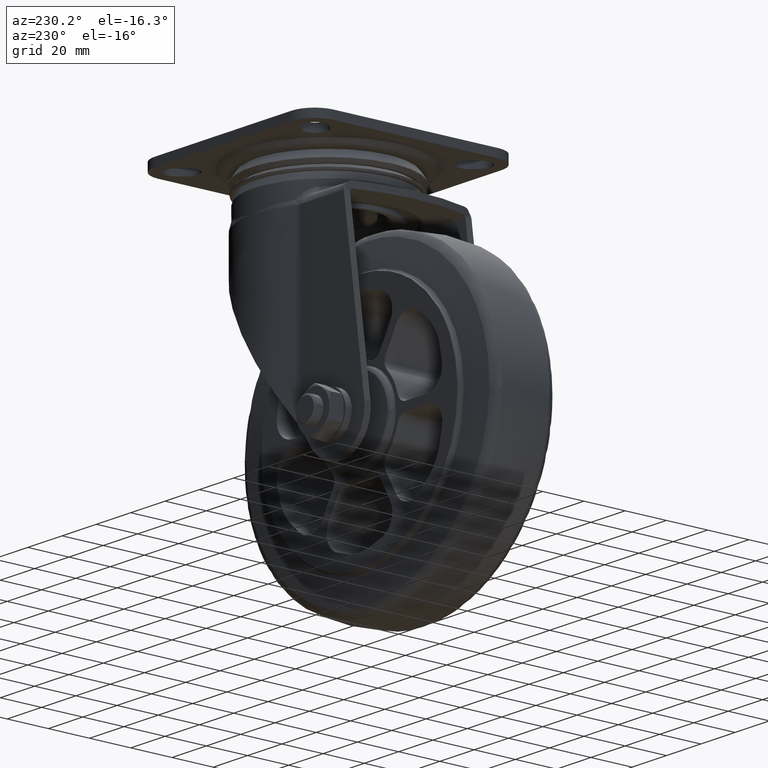
[diagram: clean part render]
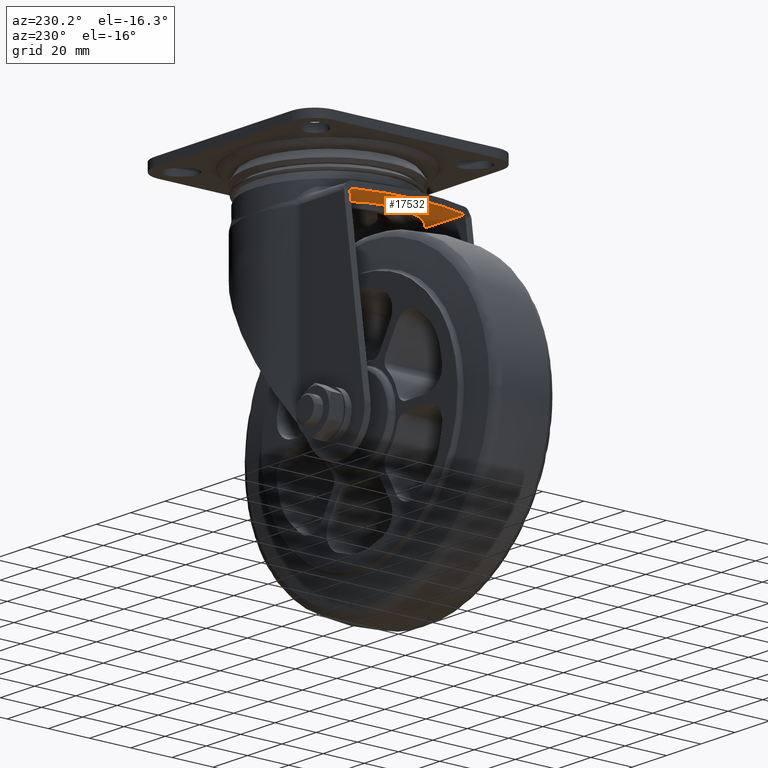
[diagram: same view with one face highlighted and labeled with its STEP entity id]
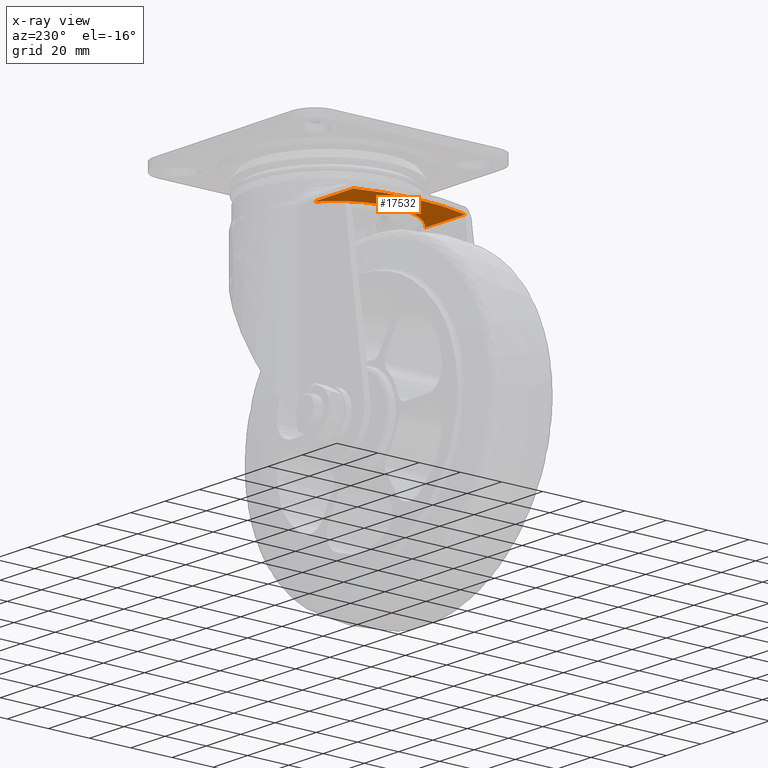
[diagram: x-ray of the same camera — body ghosted, the highlighted face saturated]
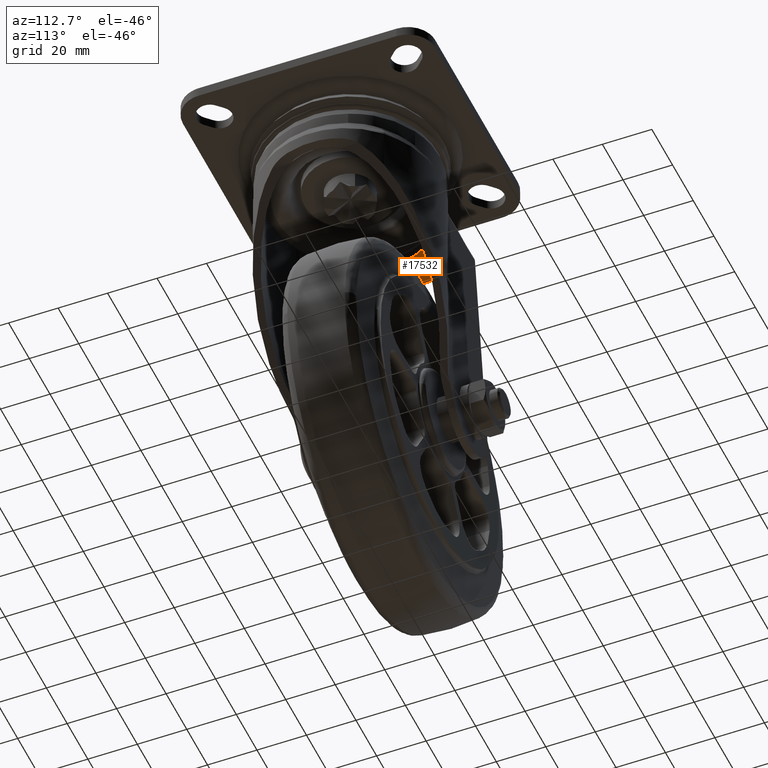
[diagram: same view with one face highlighted and labeled with its STEP entity id]
A machine part, auxiliary view. The second image highlights one B-rep face of the part: STEP entity #17532.
The next image is the same camera in x-ray: the body ghosted, the highlighted face saturated — about 0% of this face is hidden behind the body in this view.
A second angle (auxiliary view) of the same face is appended — the face is thin or edge-on in the first view.
In plain terms, the highlighted face is a freeform B-spline surface patch.
Its self-contained STEP definition (entity closure, byte-faithful):
#13741=CARTESIAN_POINT('',(16.947787507931899,-27.0,87.649990000000003));
#13742=VERTEX_POINT('',#13741);
#13800=CARTESIAN_POINT('',(-5.725844503931270,-27.0,87.649990000000003));
#13801=VERTEX_POINT('',#13800);
#13831=CARTESIAN_POINT('',(16.947787507931899,-27.0,87.649990000000003));
#13832=CARTESIAN_POINT('',(-5.725844503931270,-27.0,87.649990000000003));
#13833=QUASI_UNIFORM_CURVE('',1,(#13831,#13832),.UNSPECIFIED.,.F.,.U.);
#13834=EDGE_CURVE('',#13742,#13801,#13833,.T.);
#14021=CARTESIAN_POINT('',(16.947787507931899,27.0,87.649990000000003));
#14022=VERTEX_POINT('',#14021);
#14105=CARTESIAN_POINT('',(-5.725844503931270,27.0,87.649990000000003));
#14106=VERTEX_POINT('',#14105);
#14107=CARTESIAN_POINT('',(-5.725844503931270,27.0,87.649990000000003));
#14108=CARTESIAN_POINT('',(16.947787507931899,27.0,87.649990000000003));
#14109=QUASI_UNIFORM_CURVE('',1,(#14107,#14108),.UNSPECIFIED.,.F.,.U.);
#14110=EDGE_CURVE('',#14106,#14022,#14109,.T.);
#14266=CARTESIAN_POINT('',(13.972529077802420,24.480222650285100,87.649990000000003));
#14267=VERTEX_POINT('',#14266);
#14281=CARTESIAN_POINT('',(16.947787507931931,26.999999999999972,87.649990000000003));
#14282=CARTESIAN_POINT('',(15.398007575911528,25.813496556810680,87.649990000000003));
#14283=CARTESIAN_POINT('',(13.972529077802420,24.480222650285100,87.649990000000003));
#14291=(BOUNDED_CURVE()B_SPLINE_CURVE(2,(#14281,#14282,#14283),.UNSPECIFIED.,.F.,.U.)CURVE()GEOMETRIC_REPRESENTATION_ITEM()QUASI_UNIFORM_CURVE()RATIONAL_B_SPLINE_CURVE((1.0,0.998785475742759,1.0))REPRESENTATION_ITEM(''));
#14292=EDGE_CURVE('',#14022,#14267,#14291,.T.);
#14316=CARTESIAN_POINT('',(13.972529077802101,-24.480222650284450,87.649990000000003));
#14317=VERTEX_POINT('',#14316);
#14331=CARTESIAN_POINT('',(13.972529077802410,24.480222650285111,87.649990000000003));
#14332=CARTESIAN_POINT('',(3.349997999999896,14.544791476766296,87.649989999999988));
#14333=CARTESIAN_POINT('',(3.349997999999896,1.278977E-013,87.649990000000003));
#14334=CARTESIAN_POINT('',(3.349997999999896,-14.544791476765729,87.649989999999988));
#14335=CARTESIAN_POINT('',(13.972529077802040,-24.480222650284500,87.649990000000003));
#14343=(BOUNDED_CURVE()B_SPLINE_CURVE(2,(#14331,#14332,#14333,#14334,#14335),.UNSPECIFIED.,.F.,.U.)B_SPLINE_CURVE_WITH_KNOTS((3,2,3),(0.0,0.500000000000000,1.0),.UNSPECIFIED.)CURVE()GEOMETRIC_REPRESENTATION_ITEM()RATIONAL_B_SPLINE_CURVE((1.0,0.917358172306191,1.0,0.917358172306191,1.0))REPRESENTATION_ITEM(''));
#14344=EDGE_CURVE('',#14267,#14317,#14343,.T.);
#14397=CARTESIAN_POINT('',(13.972529077802140,-24.480222650284389,87.649990000000003));
#14398=CARTESIAN_POINT('',(15.398007575911306,-25.813496556810342,87.649990000000003));
#14399=CARTESIAN_POINT('',(16.947787507931981,-26.999999999999840,87.649990000000003));
#14407=(BOUNDED_CURVE()B_SPLINE_CURVE(2,(#14397,#14398,#14399),.UNSPECIFIED.,.F.,.U.)CURVE()GEOMETRIC_REPRESENTATION_ITEM()QUASI_UNIFORM_CURVE()RATIONAL_B_SPLINE_CURVE((1.0,0.998785475742759,1.0))REPRESENTATION_ITEM(''));
#14408=EDGE_CURVE('',#14317,#13742,#14407,.T.);
#16383=CARTESIAN_POINT('',(-5.725844503931270,-28.073518796379751,87.649990000000003));
#16384=VERTEX_POINT('',#16383);
#16402=CARTESIAN_POINT('',(-5.725844503931270,-27.0,87.649990000000003));
#16403=CARTESIAN_POINT('',(-5.725844503931270,-28.073518796379751,87.649990000000003));
#16404=QUASI_UNIFORM_CURVE('',1,(#16402,#16403),.UNSPECIFIED.,.F.,.U.);
#16405=EDGE_CURVE('',#13801,#16384,#16404,.T.);
#16437=CARTESIAN_POINT('',(-5.725844503931270,28.073518796379751,87.649990000000003));
#16438=VERTEX_POINT('',#16437);
#16439=CARTESIAN_POINT('',(-5.725844503931270,28.073518796379751,87.649990000000003));
#16440=CARTESIAN_POINT('',(-5.725844503931270,27.0,87.649990000000003));
#16441=QUASI_UNIFORM_CURVE('',1,(#16439,#16440),.UNSPECIFIED.,.F.,.U.);
#16442=EDGE_CURVE('',#16438,#14106,#16441,.T.);
#16767=CARTESIAN_POINT('',(-5.725844503931265,28.073518796379769,87.649990000000003));
#16768=CARTESIAN_POINT('',(-14.799501265556488,0.0,87.649990000000017));
#16769=CARTESIAN_POINT('',(-5.725844503931279,-28.073518796379751,87.649990000000003));
#16777=(BOUNDED_CURVE()B_SPLINE_CURVE(2,(#16767,#16768,#16769),.UNSPECIFIED.,.F.,.U.)CURVE()GEOMETRIC_REPRESENTATION_ITEM()QUASI_UNIFORM_CURVE()RATIONAL_B_SPLINE_CURVE((1.0,0.951533345918812,1.0))REPRESENTATION_ITEM(''));
#16778=EDGE_CURVE('',#16438,#16384,#16777,.T.);
#17517=CARTESIAN_POINT('',(-11.503534179125779,-30.878063215314231,87.649990000000003));
#17518=CARTESIAN_POINT('',(18.301322656150081,-30.878063215314231,87.649990000000003));
#17519=CARTESIAN_POINT('',(-11.503534179125779,30.878064721295139,87.649990000000003));
#17520=CARTESIAN_POINT('',(18.301322656150081,30.878064721295139,87.649990000000003));
#17521=B_SPLINE_SURFACE_WITH_KNOTS('',1,1,((#17517,#17519),(#17518,#17520)),.UNSPECIFIED.,.F.,.F.,.U.,(2,2),(2,2),(0.0,29.804856835275860),(0.0,61.756127936609367),.UNSPECIFIED.);
#17522=ORIENTED_EDGE('',*,*,#16442,.T.);
#17523=ORIENTED_EDGE('',*,*,#14110,.T.);
#17524=ORIENTED_EDGE('',*,*,#14292,.T.);
#17525=ORIENTED_EDGE('',*,*,#14344,.T.);
#17526=ORIENTED_EDGE('',*,*,#14408,.T.);
#17527=ORIENTED_EDGE('',*,*,#13834,.T.);
#17528=ORIENTED_EDGE('',*,*,#16405,.T.);
#17529=ORIENTED_EDGE('',*,*,#16778,.F.);
#17530=EDGE_LOOP('',(#17522,#17523,#17524,#17525,#17526,#17527,#17528,#17529));
#17531=FACE_OUTER_BOUND('',#17530,.T.);
#17532=ADVANCED_FACE('',(#17531),#17521,.F.);